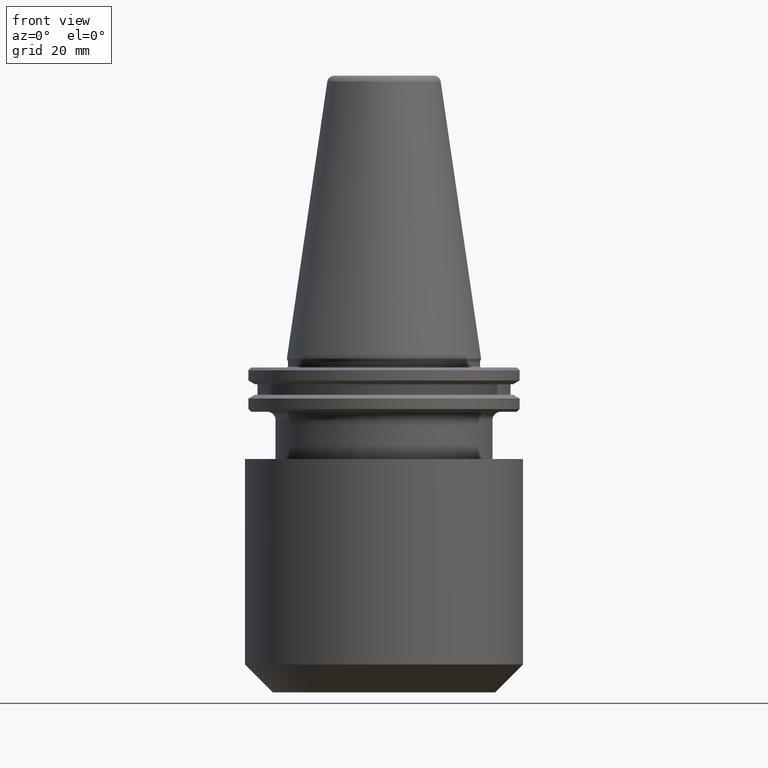
[diagram: clean part render]
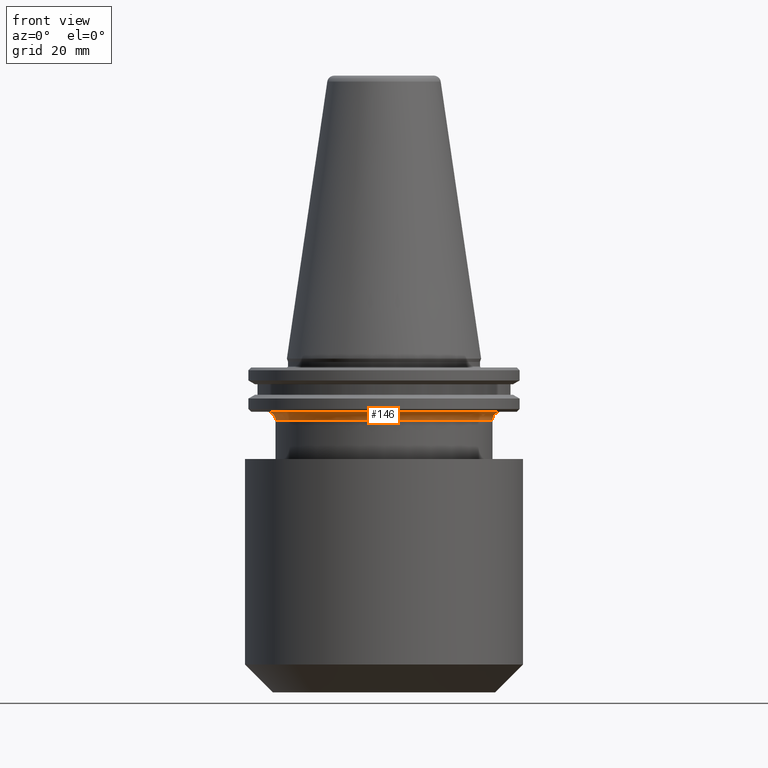
[diagram: same view with one face highlighted and labeled with its STEP entity id]
A machine part, front view. The second image highlights one B-rep face of the part: STEP entity #146.
In plain terms, the highlighted toroidal blend (fillet) surface has major radius 42 mm and minor (blend) radius 3 mm.
Its self-contained STEP definition (entity closure, byte-faithful):
#5 = VERTEX_POINT ( 'NONE', #764 ) ;
#52 = ORIENTED_EDGE ( 'NONE', *, *, #1032, .F. ) ;
#64 = VERTEX_POINT ( 'NONE', #523 ) ;
#128 = DIRECTION ( 'NONE',  ( -1.000000000000000000, 1.224646799147352000E-016, 0.0000000000000000000 ) ) ;
#146 = ADVANCED_FACE ( 'NONE', ( #1062 ), #435, .F. ) ;
#154 = CIRCLE ( 'NONE', #504, 2.999999999999999100 ) ;
#174 = DIRECTION ( 'NONE',  ( 1.000000000000000000, 0.0000000000000000000, 0.0000000000000000000 ) ) ;
#177 = VERTEX_POINT ( 'NONE', #444 ) ;
#195 = CIRCLE ( 'NONE', #704, 3.000000000000002700 ) ;
#229 = CARTESIAN_POINT ( 'NONE',  ( 0.0000000000000000000, 0.0000000000000000000, -22.09999999999995200 ) ) ;
#233 = EDGE_CURVE ( 'NONE', #64, #5, #154, .T. ) ;
#268 = VERTEX_POINT ( 'NONE', #782 ) ;
#380 = CARTESIAN_POINT ( 'NONE',  ( -42.00000000000000000, 5.143516556418883300E-015, -22.09999999999995200 ) ) ;
#400 = EDGE_CURVE ( 'NONE', #5, #177, #445, .T. ) ;
#415 = EDGE_CURVE ( 'NONE', #268, #177, #195, .T. ) ;
#422 = AXIS2_PLACEMENT_3D ( 'NONE', #587, #836, #174 ) ;
#424 = CIRCLE ( 'NONE', #422, 42.00000000000000000 ) ;
#431 = DIRECTION ( 'NONE',  ( -0.0000000000000000000, -0.0000000000000000000, 1.000000000000000000 ) ) ;
#435 = TOROIDAL_SURFACE ( 'NONE', #658, 42.00000000000000000, 3.000000000000000000 ) ;
#444 = CARTESIAN_POINT ( 'NONE',  ( -39.00000000000000000, 4.776122516674677900E-015, -22.09999999999995200 ) ) ;
#445 = CIRCLE ( 'NONE', #631, 39.00000000000000000 ) ;
#454 = DIRECTION ( 'NONE',  ( 1.000000000000000000, 0.0000000000000000000, 0.0000000000000000000 ) ) ;
#504 = AXIS2_PLACEMENT_3D ( 'NONE', #598, #634, #549 ) ;
#523 = CARTESIAN_POINT ( 'NONE',  ( 42.00000000000000000, 0.0000000000000000000, -19.09999999999995200 ) ) ;
#537 = ORIENTED_EDGE ( 'NONE', *, *, #233, .F. ) ;
#541 = CARTESIAN_POINT ( 'NONE',  ( 0.0000000000000000000, 0.0000000000000000000, -22.09999999999995200 ) ) ;
#549 = DIRECTION ( 'NONE',  ( 0.0000000000000000000, 0.0000000000000000000, -1.000000000000000000 ) ) ;
#575 = EDGE_LOOP ( 'NONE', ( #52, #711, #945, #537 ) ) ;
#587 = CARTESIAN_POINT ( 'NONE',  ( 0.0000000000000000000, 0.0000000000000000000, -19.09999999999995200 ) ) ;
#591 = DIRECTION ( 'NONE',  ( 1.000000000000000000, 0.0000000000000000000, 0.0000000000000000000 ) ) ;
#598 = CARTESIAN_POINT ( 'NONE',  ( 42.00000000000000000, 0.0000000000000000000, -22.09999999999995200 ) ) ;
#631 = AXIS2_PLACEMENT_3D ( 'NONE', #541, #800, #454 ) ;
#634 = DIRECTION ( 'NONE',  ( 0.0000000000000000000, -1.000000000000000000, 0.0000000000000000000 ) ) ;
#658 = AXIS2_PLACEMENT_3D ( 'NONE', #229, #431, #591 ) ;
#704 = AXIS2_PLACEMENT_3D ( 'NONE', #380, #950, #128 ) ;
#711 = ORIENTED_EDGE ( 'NONE', *, *, #415, .T. ) ;
#764 = CARTESIAN_POINT ( 'NONE',  ( 39.00000000000000000, 0.0000000000000000000, -22.09999999999995200 ) ) ;
#782 = CARTESIAN_POINT ( 'NONE',  ( -42.00000000000000000, 5.143516556418883300E-015, -19.09999999999995200 ) ) ;
#800 = DIRECTION ( 'NONE',  ( 0.0000000000000000000, 0.0000000000000000000, -1.000000000000000000 ) ) ;
#836 = DIRECTION ( 'NONE',  ( -0.0000000000000000000, -0.0000000000000000000, 1.000000000000000000 ) ) ;
#945 = ORIENTED_EDGE ( 'NONE', *, *, #400, .F. ) ;
#950 = DIRECTION ( 'NONE',  ( 1.224646799147353200E-016, 1.000000000000000000, 0.0000000000000000000 ) ) ;
#1032 = EDGE_CURVE ( 'NONE', #268, #64, #424, .T. ) ;
#1062 = FACE_OUTER_BOUND ( 'NONE', #575, .T. ) ;